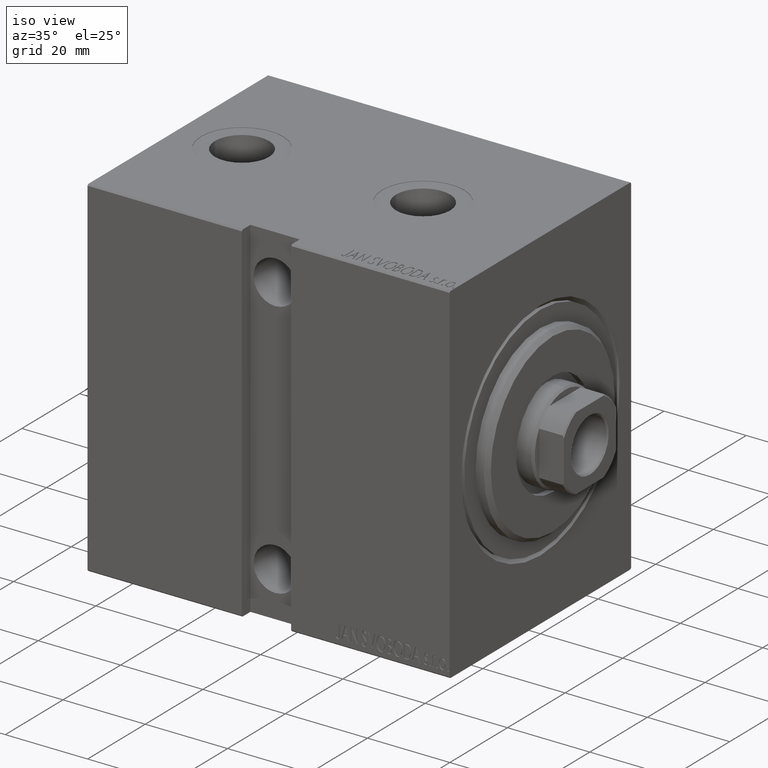
[diagram: clean part render]
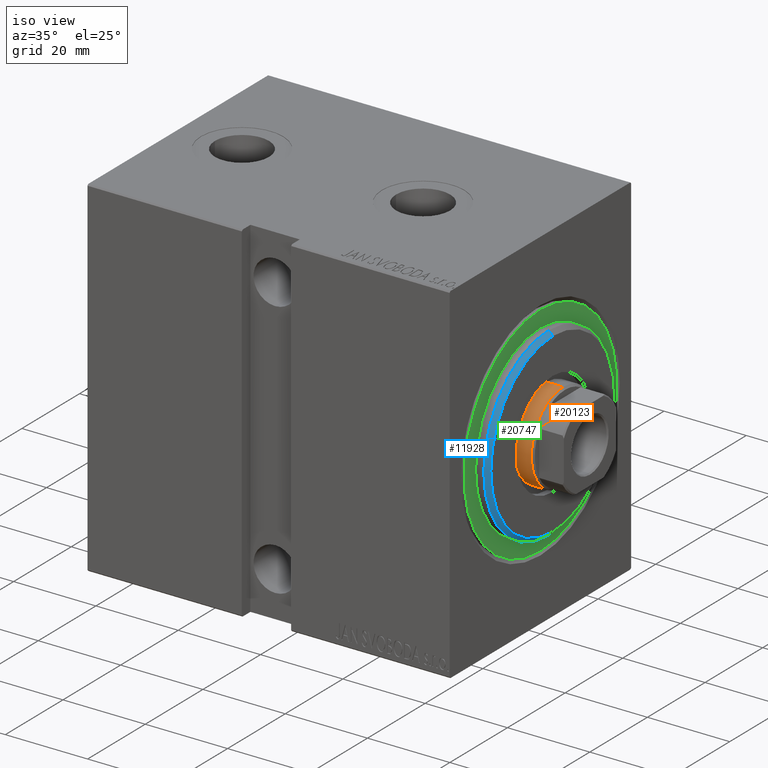
[diagram: same view with three faces highlighted in distinct colors, each labeled with its STEP entity id]
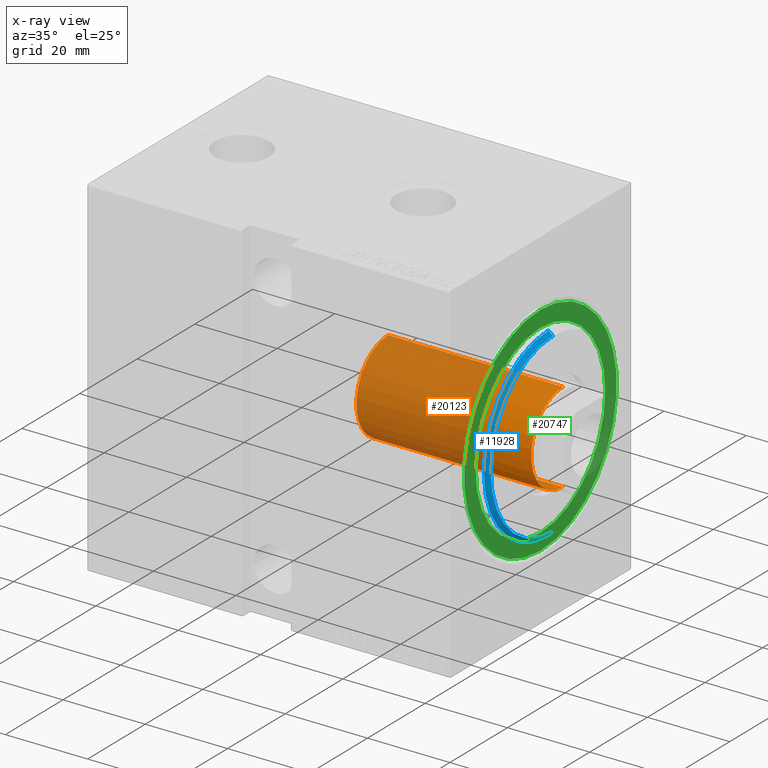
[diagram: x-ray of the same camera — body ghosted, the three highlighted faces saturated]
A machine part, iso view with three faces highlighted in distinct colors.
The next image is the same camera in x-ray (body ghosted, the three faces saturated) — at least one of them is partly hidden behind the body in this view.
Their STEP definitions:

[orange] entity #20123 — the highlighted cylindrical surface (partial cylindrical patch) has radius 11 mm, axis along (-1, -0, 0).
#152 = CARTESIAN_POINT ( 'NONE',  ( 11.00000000000000000, 1.347111479062088405E-15, 81.49999999999997158 ) ) ;
#2374 = AXIS2_PLACEMENT_3D ( 'NONE', #41176, #18587, #28554 ) ;
#2436 = VERTEX_POINT ( 'NONE', #152 ) ;
#2547 = CYLINDRICAL_SURFACE ( 'NONE', #4628, 11.00000000000000000 ) ;
#3063 = VECTOR ( 'NONE', #39102, 1000.000000000000000 ) ;
#3264 = VERTEX_POINT ( 'NONE', #15208 ) ;
#4628 = AXIS2_PLACEMENT_3D ( 'NONE', #15777, #21633, #29012 ) ;
#5124 = CIRCLE ( 'NONE', #2374, 11.00000000000000000 ) ;
#5524 = ORIENTED_EDGE ( 'NONE', *, *, #5925, .T. ) ;
#5925 = EDGE_CURVE ( 'NONE', #33433, #3264, #42507, .T. ) ;
#7776 = EDGE_CURVE ( 'NONE', #36027, #33433, #25422, .T. ) ;
#8930 = CARTESIAN_POINT ( 'NONE',  ( -11.00000000000000000, 0.000000000000000000, 81.49999999999997158 ) ) ;
#11056 = EDGE_CURVE ( 'NONE', #2436, #3264, #42191, .T. ) ;
#12534 = EDGE_CURVE ( 'NONE', #2436, #36027, #5124, .T. ) ;
#15208 = CARTESIAN_POINT ( 'NONE',  ( 11.00000000000000000, 1.347111479062088405E-15, 39.00000000000000000 ) ) ;
#15552 = FACE_OUTER_BOUND ( 'NONE', #30450, .T. ) ;
#15777 = CARTESIAN_POINT ( 'NONE',  ( 0.000000000000000000, 0.000000000000000000, 81.99999999999998579 ) ) ;
#17231 = ORIENTED_EDGE ( 'NONE', *, *, #7776, .T. ) ;
#18587 = DIRECTION ( 'NONE',  ( 0.000000000000000000, 0.000000000000000000, -1.000000000000000000 ) ) ;
#18729 = CARTESIAN_POINT ( 'NONE',  ( 11.00000000000000000, 1.347111479062088405E-15, 81.99999999999998579 ) ) ;
#19345 = CARTESIAN_POINT ( 'NONE',  ( -11.00000000000000000, 0.000000000000000000, 81.99999999999998579 ) ) ;
#20123 = ADVANCED_FACE ( 'NONE', ( #15552 ), #2547, .T. ) ;
#21633 = DIRECTION ( 'NONE',  ( -0.000000000000000000, -0.000000000000000000, -1.000000000000000000 ) ) ;
#24040 = ORIENTED_EDGE ( 'NONE', *, *, #12534, .T. ) ;
#25422 = LINE ( 'NONE', #19345, #3063 ) ;
#26244 = ORIENTED_EDGE ( 'NONE', *, *, #11056, .F. ) ;
#27946 = DIRECTION ( 'NONE',  ( 1.000000000000000000, 0.000000000000000000, 0.000000000000000000 ) ) ;
#28169 = DIRECTION ( 'NONE',  ( 0.000000000000000000, 0.000000000000000000, 1.000000000000000000 ) ) ;
#28554 = DIRECTION ( 'NONE',  ( 1.000000000000000000, 0.000000000000000000, 0.000000000000000000 ) ) ;
#29012 = DIRECTION ( 'NONE',  ( -1.000000000000000000, 0.000000000000000000, 0.000000000000000000 ) ) ;
#29321 = AXIS2_PLACEMENT_3D ( 'NONE', #31005, #28169, #27946 ) ;
#30450 = EDGE_LOOP ( 'NONE', ( #26244, #24040, #17231, #5524 ) ) ;
#30899 = CARTESIAN_POINT ( 'NONE',  ( -11.00000000000000000, 0.000000000000000000, 39.00000000000000000 ) ) ;
#31005 = CARTESIAN_POINT ( 'NONE',  ( 0.000000000000000000, 0.000000000000000000, 39.00000000000000000 ) ) ;
#31418 = VECTOR ( 'NONE', #32410, 1000.000000000000000 ) ;
#32410 = DIRECTION ( 'NONE',  ( -0.000000000000000000, -0.000000000000000000, -1.000000000000000000 ) ) ;
#33433 = VERTEX_POINT ( 'NONE', #30899 ) ;
#36027 = VERTEX_POINT ( 'NONE', #8930 ) ;
#39102 = DIRECTION ( 'NONE',  ( -0.000000000000000000, -0.000000000000000000, -1.000000000000000000 ) ) ;
#41176 = CARTESIAN_POINT ( 'NONE',  ( 0.000000000000000000, 0.000000000000000000, 81.49999999999997158 ) ) ;
#42191 = LINE ( 'NONE', #18729, #31418 ) ;
#42507 = CIRCLE ( 'NONE', #29321, 11.00000000000000000 ) ;

[blue] entity #11928 — the highlighted conical surface has half-angle 45 deg.
#1455 = LINE ( 'NONE', #28140, #3795 ) ;
#3329 = DIRECTION ( 'NONE',  ( -1.000000000000000000, 0.000000000000000000, 0.000000000000000000 ) ) ;
#3795 = VECTOR ( 'NONE', #22068, 1000.000000000000000 ) ;
#5248 = AXIS2_PLACEMENT_3D ( 'NONE', #35202, #41072, #18701 ) ;
#6429 = VERTEX_POINT ( 'NONE', #15531 ) ;
#7489 = ORIENTED_EDGE ( 'NONE', *, *, #13231, .F. ) ;
#9989 = CONICAL_SURFACE ( 'NONE', #15534, 21.50000000000001066, 0.7853981633974466137 ) ;
#11721 = CARTESIAN_POINT ( 'NONE',  ( 3.000000000000000000, 0.000000000000000000, 21.50000000000001066 ) ) ;
#11928 = ADVANCED_FACE ( 'NONE', ( #32895 ), #9989, .T. ) ;
#12930 = CARTESIAN_POINT ( 'NONE',  ( 3.000000000000000000, 0.000000000000000000, 0.000000000000000000 ) ) ;
#13145 = CARTESIAN_POINT ( 'NONE',  ( 2.000000000000006217, 0.000000000000000000, 22.50000000000000355 ) ) ;
#13231 = EDGE_CURVE ( 'NONE', #39697, #6429, #1455, .T. ) ;
#15531 = CARTESIAN_POINT ( 'NONE',  ( 2.000000000000006217, 2.755455298081545172E-15, -22.50000000000000355 ) ) ;
#15534 = AXIS2_PLACEMENT_3D ( 'NONE', #12930, #38768, #42885 ) ;
#15551 = AXIS2_PLACEMENT_3D ( 'NONE', #32829, #3329, #25681 ) ;
#15565 = EDGE_LOOP ( 'NONE', ( #7489, #32855, #17576, #22116 ) ) ;
#17576 = ORIENTED_EDGE ( 'NONE', *, *, #30588, .T. ) ;
#18004 = EDGE_CURVE ( 'NONE', #20734, #39697, #37838, .T. ) ;
#18701 = DIRECTION ( 'NONE',  ( 0.000000000000000000, 0.000000000000000000, -1.000000000000000000 ) ) ;
#20734 = VERTEX_POINT ( 'NONE', #11721 ) ;
#22068 = DIRECTION ( 'NONE',  ( -0.7071067811865487940, 8.659560562354919300E-17, -0.7071067811865463515 ) ) ;
#22116 = ORIENTED_EDGE ( 'NONE', *, *, #29712, .F. ) ;
#25681 = DIRECTION ( 'NONE',  ( 0.000000000000000000, 0.000000000000000000, -1.000000000000000000 ) ) ;
#25966 = CIRCLE ( 'NONE', #15551, 22.50000000000000355 ) ;
#26560 = VERTEX_POINT ( 'NONE', #13145 ) ;
#27786 = CARTESIAN_POINT ( 'NONE',  ( 3.000000000000000000, 0.000000000000000000, 21.50000000000001066 ) ) ;
#28140 = CARTESIAN_POINT ( 'NONE',  ( 3.000000000000000000, 2.632990618166810813E-15, -21.50000000000001066 ) ) ;
#29712 = EDGE_CURVE ( 'NONE', #6429, #26560, #25966, .T. ) ;
#30588 = EDGE_CURVE ( 'NONE', #20734, #26560, #40402, .T. ) ;
#32829 = CARTESIAN_POINT ( 'NONE',  ( 2.000000000000006217, 0.000000000000000000, 0.000000000000000000 ) ) ;
#32855 = ORIENTED_EDGE ( 'NONE', *, *, #18004, .F. ) ;
#32895 = FACE_OUTER_BOUND ( 'NONE', #15565, .T. ) ;
#35202 = CARTESIAN_POINT ( 'NONE',  ( 3.000000000000000000, 0.000000000000000000, 0.000000000000000000 ) ) ;
#37591 = CARTESIAN_POINT ( 'NONE',  ( 3.000000000000000000, 2.694222958124177993E-15, -21.50000000000001066 ) ) ;
#37784 = DIRECTION ( 'NONE',  ( -0.7071067811865487940, 0.000000000000000000, 0.7071067811865463515 ) ) ;
#37838 = CIRCLE ( 'NONE', #5248, 21.50000000000001066 ) ;
#38768 = DIRECTION ( 'NONE',  ( -1.000000000000000000, 0.000000000000000000, 0.000000000000000000 ) ) ;
#39697 = VERTEX_POINT ( 'NONE', #37591 ) ;
#40402 = LINE ( 'NONE', #27786, #40493 ) ;
#40493 = VECTOR ( 'NONE', #37784, 1000.000000000000000 ) ;
#41072 = DIRECTION ( 'NONE',  ( 1.000000000000000000, -0.000000000000000000, 0.000000000000000000 ) ) ;
#42885 = DIRECTION ( 'NONE',  ( 0.000000000000000000, 0.000000000000000000, 1.000000000000000000 ) ) ;

[green] entity #20747 — the highlighted planar face has unit normal (1, 0, 0).
#1457 = EDGE_CURVE ( 'NONE', #29317, #17425, #23003, .T. ) ;
#2332 = DIRECTION ( 'NONE',  ( 1.000000000000000000, 0.000000000000000000, 0.000000000000000000 ) ) ;
#3915 = VERTEX_POINT ( 'NONE', #13906 ) ;
#5376 = DIRECTION ( 'NONE',  ( 0.000000000000000000, 0.000000000000000000, -1.000000000000000000 ) ) ;
#8470 = DIRECTION ( 'NONE',  ( 1.000000000000000000, 0.000000000000000000, 0.000000000000000000 ) ) ;
#10525 = ORIENTED_EDGE ( 'NONE', *, *, #38134, .T. ) ;
#12246 = DIRECTION ( 'NONE',  ( 1.000000000000000000, -0.000000000000000000, 0.000000000000000000 ) ) ;
#13086 = DIRECTION ( 'NONE',  ( 0.000000000000000000, 0.000000000000000000, -1.000000000000000000 ) ) ;
#13906 = CARTESIAN_POINT ( 'NONE',  ( 0.000000000000000000, 2.755455298081545172E-15, -22.50000000000000355 ) ) ;
#14530 = ORIENTED_EDGE ( 'NONE', *, *, #1457, .T. ) ;
#15047 = AXIS2_PLACEMENT_3D ( 'NONE', #39334, #36902, #36490 ) ;
#15522 = CIRCLE ( 'NONE', #33550, 22.50000000000000355 ) ;
#16212 = CIRCLE ( 'NONE', #21754, 22.50000000000000355 ) ;
#16451 = CIRCLE ( 'NONE', #15047, 26.50000000000000355 ) ;
#16826 = CARTESIAN_POINT ( 'NONE',  ( 0.000000000000000000, 0.000000000000000000, -26.50000000000000355 ) ) ;
#17023 = EDGE_LOOP ( 'NONE', ( #42759, #28651 ) ) ;
#17425 = VERTEX_POINT ( 'NONE', #16826 ) ;
#18230 = PLANE ( 'NONE',  #24722 ) ;
#19109 = FACE_OUTER_BOUND ( 'NONE', #30950, .T. ) ;
#19609 = CARTESIAN_POINT ( 'NONE',  ( 0.000000000000000000, 0.000000000000000000, 0.000000000000000000 ) ) ;
#20227 = CARTESIAN_POINT ( 'NONE',  ( 0.000000000000000000, 0.000000000000000000, 0.000000000000000000 ) ) ;
#20747 = ADVANCED_FACE ( 'NONE', ( #38854, #19109 ), #18230, .T. ) ;
#21709 = DIRECTION ( 'NONE',  ( 0.000000000000000000, 0.000000000000000000, -1.000000000000000000 ) ) ;
#21754 = AXIS2_PLACEMENT_3D ( 'NONE', #19609, #12246, #25484 ) ;
#23003 = CIRCLE ( 'NONE', #36846, 26.50000000000000355 ) ;
#23928 = EDGE_CURVE ( 'NONE', #3915, #24154, #16212, .T. ) ;
#24154 = VERTEX_POINT ( 'NONE', #39332 ) ;
#24722 = AXIS2_PLACEMENT_3D ( 'NONE', #38204, #8470, #21709 ) ;
#25484 = DIRECTION ( 'NONE',  ( 0.000000000000000000, 0.000000000000000000, -1.000000000000000000 ) ) ;
#28651 = ORIENTED_EDGE ( 'NONE', *, *, #23928, .F. ) ;
#28804 = EDGE_CURVE ( 'NONE', #24154, #3915, #15522, .T. ) ;
#29317 = VERTEX_POINT ( 'NONE', #30961 ) ;
#30213 = DIRECTION ( 'NONE',  ( 1.000000000000000000, -0.000000000000000000, 0.000000000000000000 ) ) ;
#30950 = EDGE_LOOP ( 'NONE', ( #10525, #14530 ) ) ;
#30961 = CARTESIAN_POINT ( 'NONE',  ( 0.000000000000000000, 3.245314017740486554E-15, 26.50000000000000355 ) ) ;
#33550 = AXIS2_PLACEMENT_3D ( 'NONE', #20227, #30213, #13086 ) ;
#35317 = CARTESIAN_POINT ( 'NONE',  ( 0.000000000000000000, 0.000000000000000000, 0.000000000000000000 ) ) ;
#36490 = DIRECTION ( 'NONE',  ( 0.000000000000000000, 0.000000000000000000, -1.000000000000000000 ) ) ;
#36846 = AXIS2_PLACEMENT_3D ( 'NONE', #35317, #2332, #5376 ) ;
#36902 = DIRECTION ( 'NONE',  ( 1.000000000000000000, 0.000000000000000000, 0.000000000000000000 ) ) ;
#38134 = EDGE_CURVE ( 'NONE', #17425, #29317, #16451, .T. ) ;
#38204 = CARTESIAN_POINT ( 'NONE',  ( 0.000000000000000000, 0.000000000000000000, 0.000000000000000000 ) ) ;
#38854 = FACE_BOUND ( 'NONE', #17023, .T. ) ;
#39332 = CARTESIAN_POINT ( 'NONE',  ( 0.000000000000000000, 0.000000000000000000, 22.50000000000000355 ) ) ;
#39334 = CARTESIAN_POINT ( 'NONE',  ( 0.000000000000000000, 0.000000000000000000, 0.000000000000000000 ) ) ;
#42759 = ORIENTED_EDGE ( 'NONE', *, *, #28804, .F. ) ;